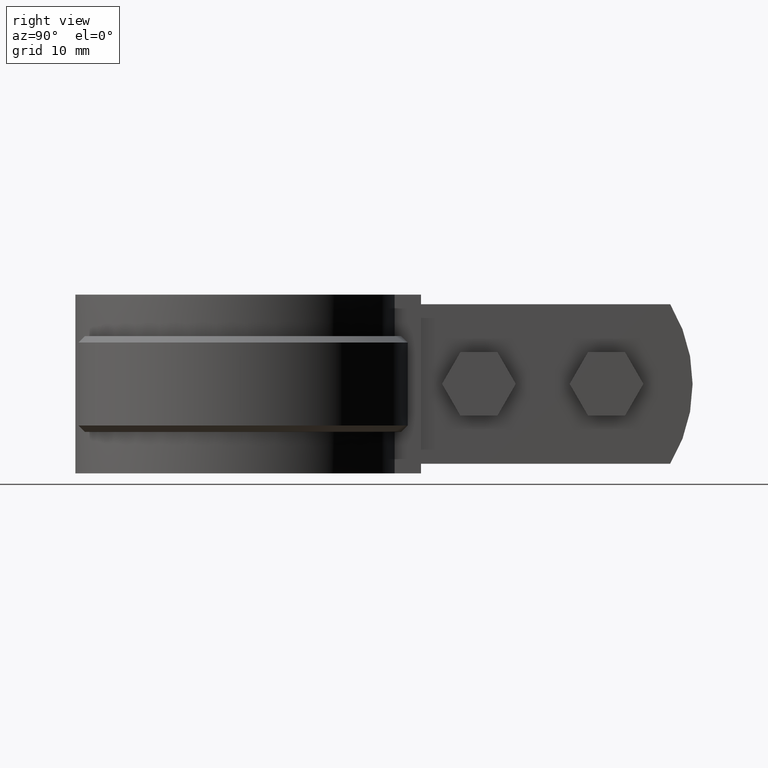
[diagram: clean part render]
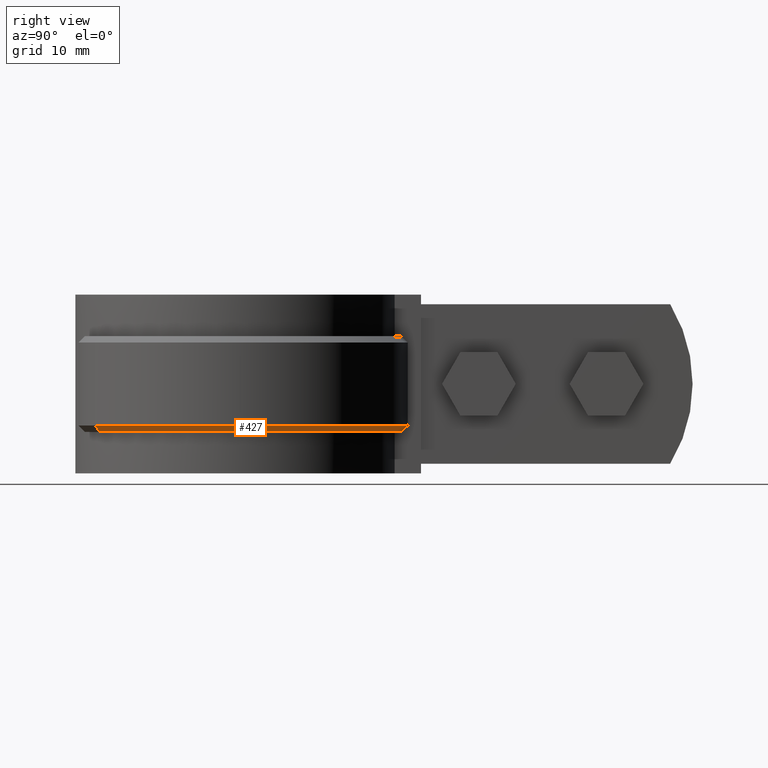
[diagram: same view with one face highlighted and labeled with its STEP entity id]
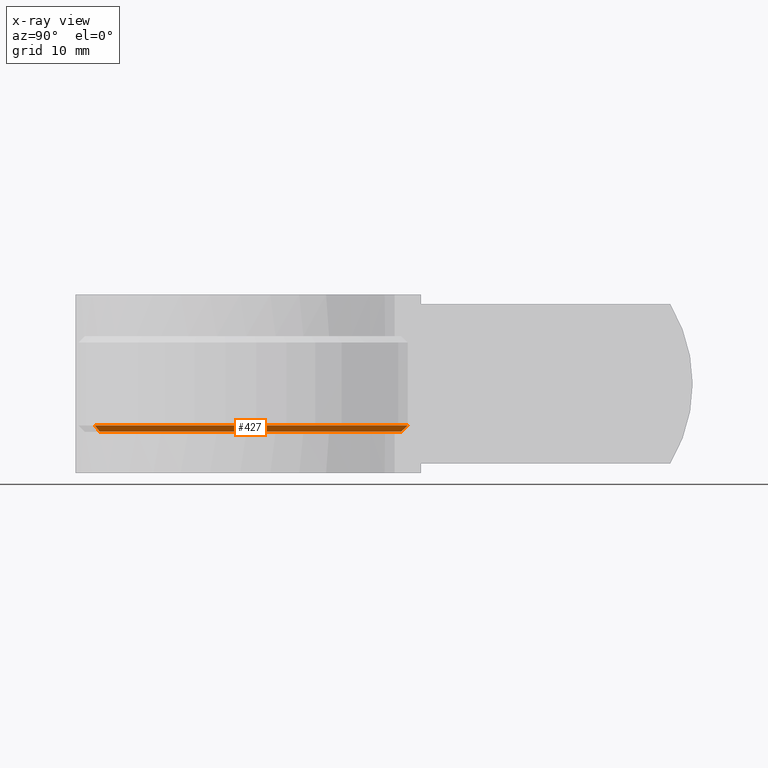
[diagram: x-ray of the same camera — body ghosted, the highlighted face saturated]
A machine part, right view. The second image highlights one B-rep face of the part: STEP entity #427.
The next image is the same camera in x-ray: the body ghosted, the highlighted face saturated — about 0% of this face is hidden behind the body in this view.
In plain terms, the highlighted conical surface has half-angle 45 deg.
Its self-contained STEP definition (entity closure, byte-faithful):
#427 = ADVANCED_FACE( '', ( #778 ), #779, .T. );
#778 = FACE_OUTER_BOUND( '', #1624, .T. );
#779 = CONICAL_SURFACE( '', #1625, 26.4450000000000, 0.785398163397448 );
#1624 = EDGE_LOOP( '', ( #4154, #4155, #4156, #4157 ) );
#1625 = AXIS2_PLACEMENT_3D( '', #4158, #4159, #4160 );
#4154 = ORIENTED_EDGE( '', *, *, #5236, .F. );
#4155 = ORIENTED_EDGE( '', *, *, #5253, .F. );
#4156 = ORIENTED_EDGE( '', *, *, #5250, .F. );
#4157 = ORIENTED_EDGE( '', *, *, #5254, .F. );
#4158 = CARTESIAN_POINT( '', ( -8.67361737988404E-016, -3.46944695195361E-015, -20.0000000000000 ) );
#4159 = DIRECTION( '', ( 0.000000000000000, 0.000000000000000, 1.00000000000000 ) );
#4160 = DIRECTION( '', ( 1.00000000000000, 0.000000000000000, 0.000000000000000 ) );
#5236 = EDGE_CURVE( '', #6055, #6058, #6059, .T. );
#5250 = EDGE_CURVE( '', #6077, #6078, #6079, .T. );
#5253 = EDGE_CURVE( '', #6078, #6055, #6082, .T. );
#5254 = EDGE_CURVE( '', #6058, #6077, #6083, .F. );
#6055 = VERTEX_POINT( '', #9586 );
#6058 = VERTEX_POINT( '', #9590 );
#6059 = B_SPLINE_CURVE_WITH_KNOTS( '', 3, ( #9591, #9592, #9593, #9594 ), .UNSPECIFIED., .F., .F., ( 4, 4 ), ( 1.96261557335472E-017, 0.00143319236465072 ), .UNSPECIFIED. );
#6077 = VERTEX_POINT( '', #9623 );
#6078 = VERTEX_POINT( '', #9624 );
#6079 = LINE( '', #9625, #9626 );
#6082 = CIRCLE( '', #9629, 27.4450000000000 );
#6083 = CIRCLE( '', #9630, 26.4450000000000 );
#9586 = CARTESIAN_POINT( '', ( 6.10000000000000, 26.7585131313382, -19.0000000000000 ) );
#9590 = CARTESIAN_POINT( '', ( 6.10000000000000, 25.7318484567277, -20.0000000000000 ) );
#9591 = CARTESIAN_POINT( '', ( 6.10000000000000, 26.7585131313382, -19.0000000000000 ) );
#9592 = CARTESIAN_POINT( '', ( 6.10000000000000, 26.4164555659505, -19.3335016161451 ) );
#9593 = CARTESIAN_POINT( '', ( 6.10000000000001, 26.0742402876680, -19.6668415690460 ) );
#9594 = CARTESIAN_POINT( '', ( 6.10000000000001, 25.7318484567277, -20.0000000000000 ) );
#9623 = CARTESIAN_POINT( '', ( 15.3872495721368, -21.5074539544962, -20.0000000000000 ) );
#9624 = CARTESIAN_POINT( '', ( 15.9691081303572, -22.3207439508848, -19.0000000000000 ) );
#9625 = CARTESIAN_POINT( '', ( 15.3872495721368, -21.5074539544962, -20.0000000000000 ) );
#9626 = VECTOR( '', #10502, 1000.00000000000 );
#9629 = AXIS2_PLACEMENT_3D( '', #10509, #10510, #10511 );
#9630 = AXIS2_PLACEMENT_3D( '', #10512, #10513, #10514 );
#10502 = DIRECTION( '', ( 0.411436132209030, -0.575082871517551, 0.707106781186549 ) );
#10509 = CARTESIAN_POINT( '', ( -8.67361737988404E-016, -3.46944695195361E-015, -19.0000000000000 ) );
#10510 = DIRECTION( '', ( 0.000000000000000, 0.000000000000000, 1.00000000000000 ) );
#10511 = DIRECTION( '', ( 1.00000000000000, 0.000000000000000, 0.000000000000000 ) );
#10512 = CARTESIAN_POINT( '', ( -8.67361737988404E-016, -3.46944695195361E-015, -20.0000000000000 ) );
#10513 = DIRECTION( '', ( 0.000000000000000, 0.000000000000000, 1.00000000000000 ) );
#10514 = DIRECTION( '', ( 1.00000000000000, 0.000000000000000, 0.000000000000000 ) );